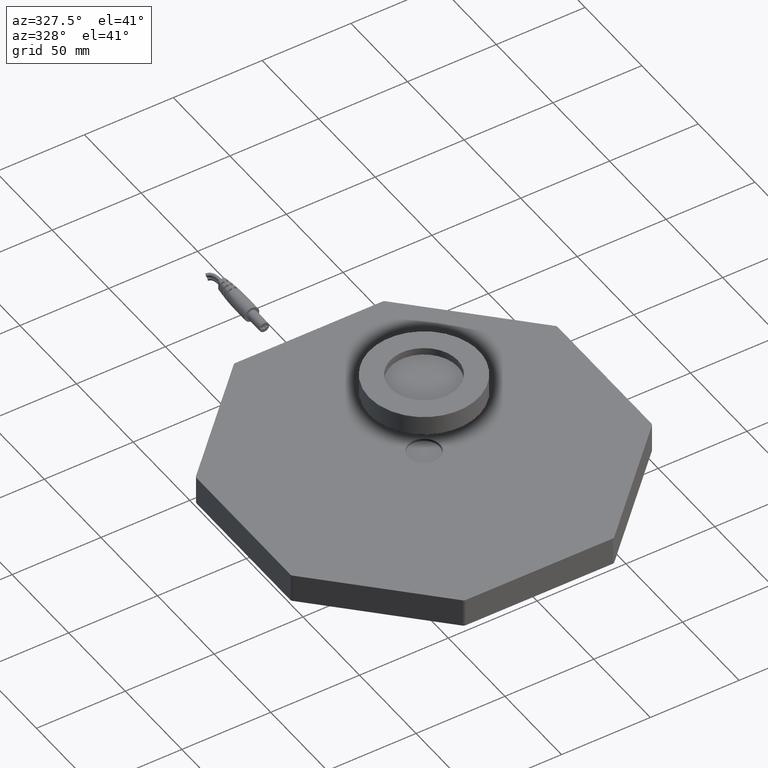
[diagram: clean part render]
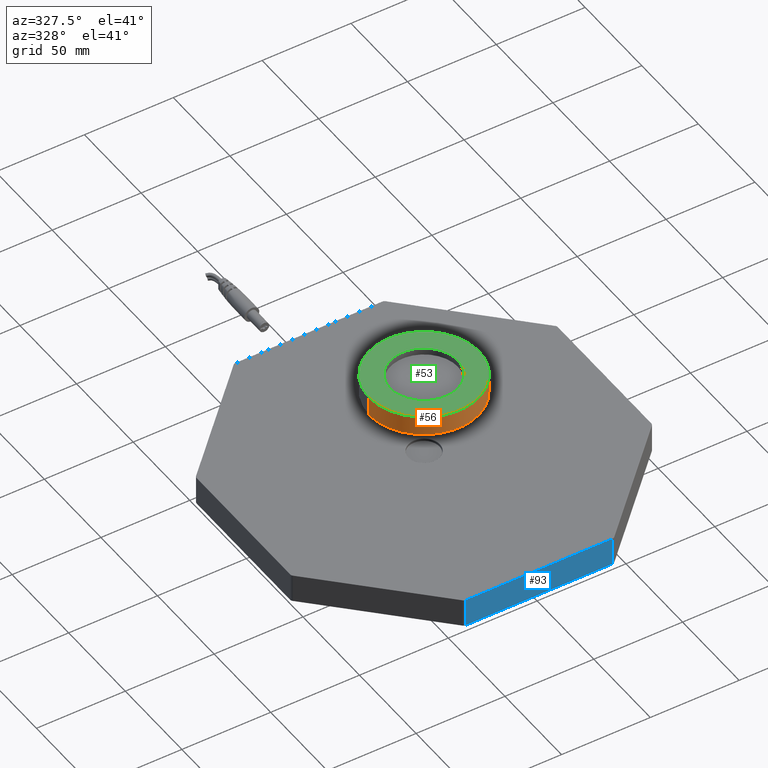
[diagram: same view with three faces highlighted in distinct colors, each labeled with its STEP entity id]
A machine part, auxiliary view with three faces highlighted in distinct colors.
Their STEP definitions:

[orange] entity #56 — the highlighted face is a freeform B-spline surface patch.
#56=ADVANCED_FACE('',(#208),#2048,.T.);
#208=FACE_OUTER_BOUND('',#349,.T.);
#349=EDGE_LOOP('',(#516,#517,#518,#519));
#516=ORIENTED_EDGE('',*,*,#1161,.F.);
#517=ORIENTED_EDGE('',*,*,#1165,.F.);
#518=ORIENTED_EDGE('',*,*,#1166,.F.);
#519=ORIENTED_EDGE('',*,*,#1163,.F.);
#1161=EDGE_CURVE('',#1831,#1832,#1731,.T.);
#1163=EDGE_CURVE('',#1832,#1833,#1733,.T.);
#1165=EDGE_CURVE('',#1834,#1831,#1735,.T.);
#1166=EDGE_CURVE('',#1833,#1834,#1736,.T.);
#1731=(
BOUNDED_CURVE()
B_SPLINE_CURVE(2,(#2440,#2441,#2442,#2443,#2444),.UNSPECIFIED.,.F.,.F.)
B_SPLINE_CURVE_WITH_KNOTS((3,2,3),(0.,1.5707963267949,3.14159265358979),
 .UNSPECIFIED.)
CURVE()
GEOMETRIC_REPRESENTATION_ITEM()
RATIONAL_B_SPLINE_CURVE((1.,0.707106781186547,1.,0.707106781186547,1.))
REPRESENTATION_ITEM('')
);
#1733=(
BOUNDED_CURVE()
B_SPLINE_CURVE(1,(#2450,#2451),.UNSPECIFIED.,.F.,.F.)
B_SPLINE_CURVE_WITH_KNOTS((2,2),(0.,11.),.UNSPECIFIED.)
CURVE()
GEOMETRIC_REPRESENTATION_ITEM()
RATIONAL_B_SPLINE_CURVE((1.,1.))
REPRESENTATION_ITEM('')
);
#1735=(
BOUNDED_CURVE()
B_SPLINE_CURVE(1,(#2457,#2458),.UNSPECIFIED.,.F.,.F.)
B_SPLINE_CURVE_WITH_KNOTS((2,2),(-11.,0.),.UNSPECIFIED.)
CURVE()
GEOMETRIC_REPRESENTATION_ITEM()
RATIONAL_B_SPLINE_CURVE((1.,1.))
REPRESENTATION_ITEM('')
);
#1736=(
BOUNDED_CURVE()
B_SPLINE_CURVE(2,(#2459,#2460,#2461,#2462,#2463),.UNSPECIFIED.,.F.,.F.)
B_SPLINE_CURVE_WITH_KNOTS((3,2,3),(-3.14159265358979,-1.5707963267949,0.),
 .UNSPECIFIED.)
CURVE()
GEOMETRIC_REPRESENTATION_ITEM()
RATIONAL_B_SPLINE_CURVE((1.,0.707106781186547,1.,0.707106781186547,1.))
REPRESENTATION_ITEM('')
);
#1831=VERTEX_POINT('',#2394);
#1832=VERTEX_POINT('',#2395);
#1833=VERTEX_POINT('',#2396);
#1834=VERTEX_POINT('',#2397);
#2048=(
BOUNDED_SURFACE()
B_SPLINE_SURFACE(2,1,((#2332,#2333),(#2334,#2335),(#2336,#2337),(#2338,
#2339),(#2340,#2341)),.UNSPECIFIED.,.F.,.F.,.F.)
B_SPLINE_SURFACE_WITH_KNOTS((3,2,3),(2,2),(-3.14159265358979,-1.5707963267949,
0.),(0.,11.),.UNSPECIFIED.)
GEOMETRIC_REPRESENTATION_ITEM()
RATIONAL_B_SPLINE_SURFACE(((1.,1.),(0.707106781186547,0.707106781186547),
(1.,1.),(0.707106781186547,0.707106781186547),(1.,1.)))
REPRESENTATION_ITEM('')
SURFACE()
);
#2332=CARTESIAN_POINT('',(-31.0000000852214,0.,52.9999997008662));
#2333=CARTESIAN_POINT('',(-31.0000000852214,0.,63.9999997008662));
#2334=CARTESIAN_POINT('',(-31.0000000852214,-31.,52.9999997008662));
#2335=CARTESIAN_POINT('',(-31.0000000852214,-31.,63.9999997008662));
#2336=CARTESIAN_POINT('',(-8.52214423474607E-8,-31.,52.9999997008662));
#2337=CARTESIAN_POINT('',(-8.52214423474607E-8,-31.,63.9999997008662));
#2338=CARTESIAN_POINT('',(30.9999999147786,-31.,52.9999997008662));
#2339=CARTESIAN_POINT('',(30.9999999147786,-31.,63.9999997008662));
#2340=CARTESIAN_POINT('',(30.9999999147786,0.,52.9999997008662));
#2341=CARTESIAN_POINT('',(30.9999999147786,0.,63.9999997008662));
#2394=CARTESIAN_POINT('',(30.9999999147786,0.,52.9999997008662));
#2395=CARTESIAN_POINT('',(-31.0000000852214,0.,52.9999997008662));
#2396=CARTESIAN_POINT('',(-31.0000000852214,0.,63.9999997008662));
#2397=CARTESIAN_POINT('',(30.9999999147786,0.,63.9999997008662));
#2440=CARTESIAN_POINT('',(30.9999999147786,0.,52.9999997008662));
#2441=CARTESIAN_POINT('',(30.9999999147786,-31.,52.9999997008662));
#2442=CARTESIAN_POINT('',(-8.52214423474607E-8,-31.,52.9999997008662));
#2443=CARTESIAN_POINT('',(-31.0000000852214,-31.,52.9999997008662));
#2444=CARTESIAN_POINT('',(-31.0000000852214,0.,52.9999997008662));
#2450=CARTESIAN_POINT('',(-31.0000000852214,0.,52.9999997008662));
#2451=CARTESIAN_POINT('',(-31.0000000852214,0.,63.9999997008662));
#2457=CARTESIAN_POINT('',(30.9999999147786,0.,63.9999997008662));
#2458=CARTESIAN_POINT('',(30.9999999147786,0.,52.9999997008662));
#2459=CARTESIAN_POINT('',(-31.0000000852214,0.,63.9999997008662));
#2460=CARTESIAN_POINT('',(-31.0000000852214,-31.,63.9999997008662));
#2461=CARTESIAN_POINT('',(-8.52214423474607E-8,-31.,63.9999997008662));
#2462=CARTESIAN_POINT('',(30.9999999147786,-31.,63.9999997008662));
#2463=CARTESIAN_POINT('',(30.9999999147786,0.,63.9999997008662));

[blue] entity #93 — the highlighted planar face has unit normal (0, -1, 0).
#93=ADVANCED_FACE('',(#245),#2106,.T.);
#245=FACE_OUTER_BOUND('',#391,.T.);
#391=EDGE_LOOP('',(#699,#700,#701,#702));
#699=ORIENTED_EDGE('',*,*,#1259,.T.);
#700=ORIENTED_EDGE('',*,*,#1258,.T.);
#701=ORIENTED_EDGE('',*,*,#1222,.F.);
#702=ORIENTED_EDGE('',*,*,#1232,.T.);
#1222=EDGE_CURVE('',#1867,#1868,#1534,.T.);
#1232=EDGE_CURVE('',#1867,#1901,#1544,.T.);
#1258=EDGE_CURVE('',#1915,#1868,#1570,.T.);
#1259=EDGE_CURVE('',#1901,#1915,#1571,.T.);
#1534=B_SPLINE_CURVE_WITH_KNOTS('',1,(#3516,#3517),.UNSPECIFIED.,.F.,.F.,
(2,2),(-83.4226114619414,-0.828427124746209),.UNSPECIFIED.);
#1544=B_SPLINE_CURVE_WITH_KNOTS('',1,(#3560,#3561),.UNSPECIFIED.,.F.,.F.,
(2,2),(0.,15.7999995949863),.UNSPECIFIED.);
#1570=B_SPLINE_CURVE_WITH_KNOTS('',1,(#3612,#3613),.UNSPECIFIED.,.F.,.F.,
(2,2),(-15.7999995949863,0.),.UNSPECIFIED.);
#1571=B_SPLINE_CURVE_WITH_KNOTS('',1,(#3614,#3615),.UNSPECIFIED.,.F.,.F.,
(2,2),(0.,82.5941843371951),.UNSPECIFIED.);
#1867=VERTEX_POINT('',#3195);
#1868=VERTEX_POINT('',#3196);
#1901=VERTEX_POINT('',#3229);
#1915=VERTEX_POINT('',#3243);
#2106=PLANE('',#2185);
#2185=AXIS2_PLACEMENT_3D('',#2780,#2248,$);
#2248=DIRECTION('',(0.,-1.,0.));
#2780=CARTESIAN_POINT('',(41.2970921685976,-101.7,0.));
#3195=CARTESIAN_POINT('',(41.2970921685976,-101.7,0.));
#3196=CARTESIAN_POINT('',(-41.2970921685975,-101.7,0.));
#3229=CARTESIAN_POINT('',(41.2970921685976,-101.7,15.7999995949863));
#3243=CARTESIAN_POINT('',(-41.2970921685975,-101.7,15.7999995949863));
#3516=CARTESIAN_POINT('',(41.2970921685976,-101.7,0.));
#3517=CARTESIAN_POINT('',(-41.2970921685975,-101.7,0.));
#3560=CARTESIAN_POINT('',(41.2970921685976,-101.7,0.));
#3561=CARTESIAN_POINT('',(41.2970921685976,-101.7,15.7999995949863));
#3612=CARTESIAN_POINT('',(-41.2970921685975,-101.7,15.7999995949863));
#3613=CARTESIAN_POINT('',(-41.2970921685975,-101.7,0.));
#3614=CARTESIAN_POINT('',(41.2970921685976,-101.7,15.7999995949863));
#3615=CARTESIAN_POINT('',(-41.2970921685975,-101.7,15.7999995949863));

[green] entity #53 — the highlighted planar face has unit normal (0, 0, 1).
#53=ADVANCED_FACE('',(#205,#187),#2086,.T.);
#187=FACE_BOUND('',#346,.T.);
#205=FACE_OUTER_BOUND('',#345,.T.);
#345=EDGE_LOOP('',(#506,#507));
#346=EDGE_LOOP('',(#508,#509));
#506=ORIENTED_EDGE('',*,*,#1164,.F.);
#507=ORIENTED_EDGE('',*,*,#1166,.T.);
#508=ORIENTED_EDGE('',*,*,#1168,.T.);
#509=ORIENTED_EDGE('',*,*,#1167,.T.);
#1164=EDGE_CURVE('',#1833,#1834,#1734,.T.);
#1166=EDGE_CURVE('',#1833,#1834,#1736,.T.);
#1167=EDGE_CURVE('',#1835,#1836,#1737,.T.);
#1168=EDGE_CURVE('',#1836,#1835,#1738,.T.);
#1734=(
BOUNDED_CURVE()
B_SPLINE_CURVE(2,(#2452,#2453,#2454,#2455,#2456),.UNSPECIFIED.,.F.,.F.)
B_SPLINE_CURVE_WITH_KNOTS((3,2,3),(3.14159265358979,4.71238898038469,6.28318530717959),
 .UNSPECIFIED.)
CURVE()
GEOMETRIC_REPRESENTATION_ITEM()
RATIONAL_B_SPLINE_CURVE((1.,0.707106781186547,1.,0.707106781186547,1.))
REPRESENTATION_ITEM('')
);
#1736=(
BOUNDED_CURVE()
B_SPLINE_CURVE(2,(#2459,#2460,#2461,#2462,#2463),.UNSPECIFIED.,.F.,.F.)
B_SPLINE_CURVE_WITH_KNOTS((3,2,3),(-3.14159265358979,-1.5707963267949,0.),
 .UNSPECIFIED.)
CURVE()
GEOMETRIC_REPRESENTATION_ITEM()
RATIONAL_B_SPLINE_CURVE((1.,0.707106781186547,1.,0.707106781186547,1.))
REPRESENTATION_ITEM('')
);
#1737=(
BOUNDED_CURVE()
B_SPLINE_CURVE(2,(#2464,#2465,#2466,#2467,#2468),.UNSPECIFIED.,.F.,.F.)
B_SPLINE_CURVE_WITH_KNOTS((3,2,3),(0.,29.8396230978459,59.6792461956918),
 .UNSPECIFIED.)
CURVE()
GEOMETRIC_REPRESENTATION_ITEM()
RATIONAL_B_SPLINE_CURVE((1.,0.707106781186547,1.,0.707106781186547,1.))
REPRESENTATION_ITEM('')
);
#1738=(
BOUNDED_CURVE()
B_SPLINE_CURVE(2,(#2469,#2470,#2471,#2472,#2473),.UNSPECIFIED.,.F.,.F.)
B_SPLINE_CURVE_WITH_KNOTS((3,2,3),(59.6792461956918,89.5188692935377,119.358492391384),
 .UNSPECIFIED.)
CURVE()
GEOMETRIC_REPRESENTATION_ITEM()
RATIONAL_B_SPLINE_CURVE((1.,0.707106781186547,1.,0.707106781186547,1.))
REPRESENTATION_ITEM('')
);
#1833=VERTEX_POINT('',#2396);
#1834=VERTEX_POINT('',#2397);
#1835=VERTEX_POINT('',#2398);
#1836=VERTEX_POINT('',#2399);
#2086=PLANE('',#2165);
#2165=AXIS2_PLACEMENT_3D('',#2320,#2228,$);
#2228=DIRECTION('',(0.,0.,1.));
#2320=CARTESIAN_POINT('',(-37.2000000852214,-37.2,63.9999997008662));
#2396=CARTESIAN_POINT('',(-31.0000000852214,0.,63.9999997008662));
#2397=CARTESIAN_POINT('',(30.9999999147786,0.,63.9999997008662));
#2398=CARTESIAN_POINT('',(18.9999999147786,0.,63.9999997008662));
#2399=CARTESIAN_POINT('',(-19.0000000852214,0.,63.9999997008662));
#2452=CARTESIAN_POINT('',(-31.0000000852214,0.,63.9999997008662));
#2453=CARTESIAN_POINT('',(-31.0000000852214,31.,63.9999997008662));
#2454=CARTESIAN_POINT('',(-8.52214423474607E-8,31.,63.9999997008662));
#2455=CARTESIAN_POINT('',(30.9999999147786,31.,63.9999997008662));
#2456=CARTESIAN_POINT('',(30.9999999147786,0.,63.9999997008662));
#2459=CARTESIAN_POINT('',(-31.0000000852214,0.,63.9999997008662));
#2460=CARTESIAN_POINT('',(-31.0000000852214,-31.,63.9999997008662));
#2461=CARTESIAN_POINT('',(-8.52214423474607E-8,-31.,63.9999997008662));
#2462=CARTESIAN_POINT('',(30.9999999147786,-31.,63.9999997008662));
#2463=CARTESIAN_POINT('',(30.9999999147786,0.,63.9999997008662));
#2464=CARTESIAN_POINT('',(18.9999999147786,0.,63.9999997008662));
#2465=CARTESIAN_POINT('',(18.9999999147786,-19.,63.9999997008662));
#2466=CARTESIAN_POINT('',(-8.52214423474607E-8,-19.,63.9999997008662));
#2467=CARTESIAN_POINT('',(-19.0000000852214,-19.,63.9999997008662));
#2468=CARTESIAN_POINT('',(-19.0000000852214,0.,63.9999997008662));
#2469=CARTESIAN_POINT('',(-19.0000000852214,0.,63.9999997008662));
#2470=CARTESIAN_POINT('',(-19.0000000852214,19.,63.9999997008662));
#2471=CARTESIAN_POINT('',(-8.52214423474607E-8,19.,63.9999997008662));
#2472=CARTESIAN_POINT('',(18.9999999147786,19.,63.9999997008662));
#2473=CARTESIAN_POINT('',(18.9999999147786,0.,63.9999997008662));